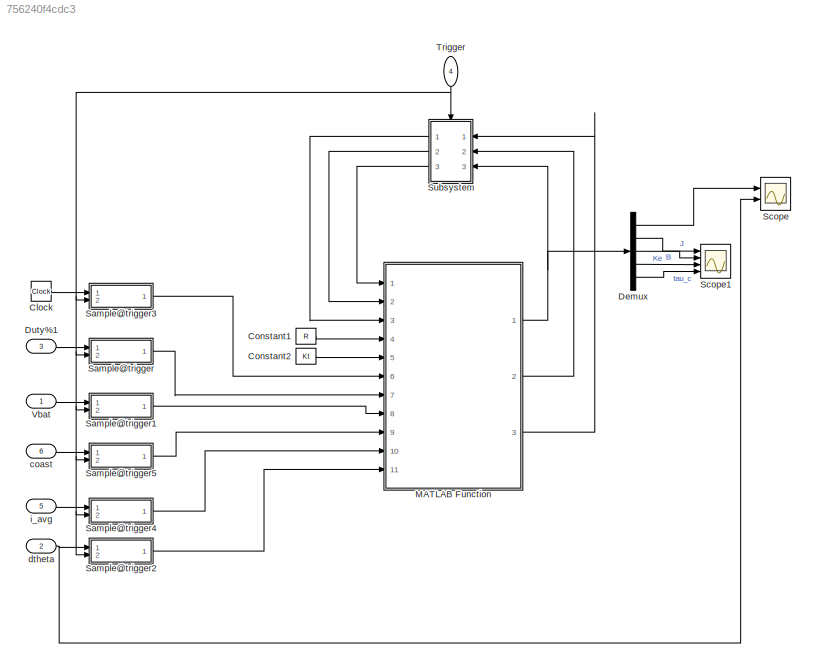
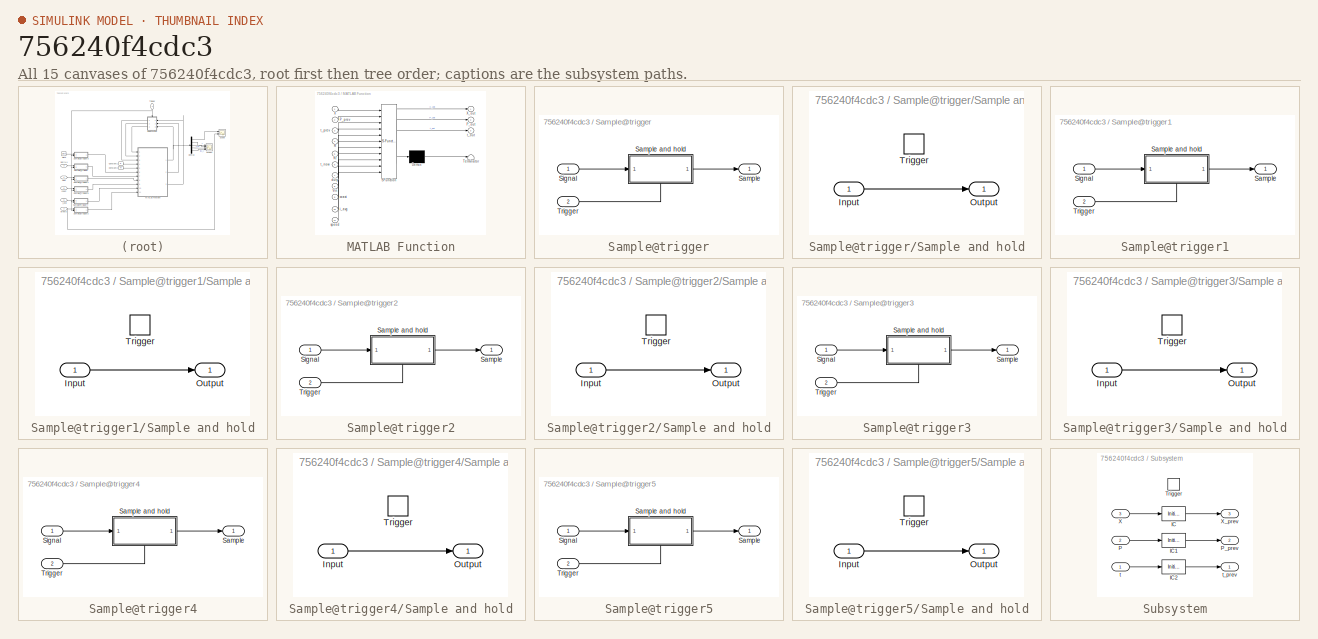
[diagram: thumbnail index - all 15 canvases of the model, root first then tree order]
MODEL slx_756240f4cdc3
KIND model
CONFIG AbsTol = auto
CONFIG EnableMultiTasking = off
CONFIG FixedStep = auto
CONFIG InitFcn = Parameters_Model\nParameters_Simulation\nParameters_Estimators
CONFIG MaxStep = auto
CONFIG MinStep = auto
CONFIG PreLoadFcn = modelDir = fileparts(get_param(bdroot, 'FileName'));\naddpath(fullfile(modelDir,'../../Parameters'));\naddpath(fullfile(modelDir,'../../Estimation/MechanicalParameters'));\n\nParameters_Model\nParameters_Simulation\nParameters_Estimators
CONFIG RelTol = 1e-3
CONFIG SampleTimeConstraint = Unconstrained
CONFIG Solver = VariableStepAuto
CONFIG SolverName = VariableStepAuto
CONFIG StartTime = 0.0
CONFIG StopTime = 10.0
BLOCK [Clock] Clock
BLOCK [Constant] Constant1
  Value = R
BLOCK [Constant] Constant2
  Value = Kt
BLOCK [Demux] Demux
  DisplayOption = bar
  Outputs = 5
  Ports = [1, 5]
BLOCK [Inport] Duty%1
  IconDisplay = Port number
  OutDataTypeStr = double
  Port = 3
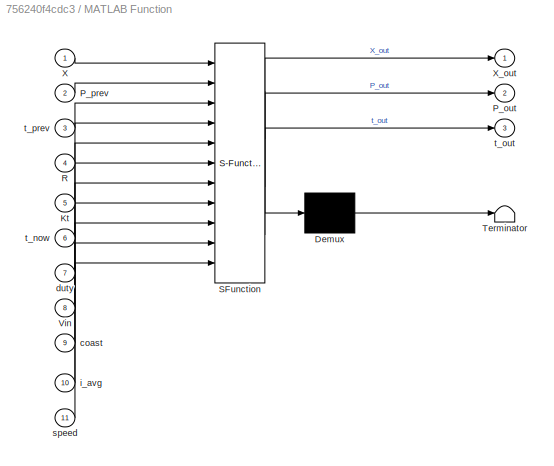
BLOCK [SubSystem] MATLAB Function
  ErrorFcn = Stateflow.Translate.translate
  PermitHierarchicalResolution = ExplicitOnly
  Ports = [11, 3]
  RequestExecContextInheritance = off
  SFBlockType = MATLAB Function
  TreatAsAtomicUnit = on
BLOCK [Demux] MATLAB Function/ Demux 
  Outputs = 1
  Ports = [1, 1]
BLOCK [S-Function] MATLAB Function/ SFunction 
  EnableBusSupport = on
  FunctionName = sf_sfun
  PortCounts = [11 4]
  Ports = [11, 4]
  SFcnIsStateOwnerBlock = off
  SFunctionDeploymentMode = off
  Tag = Stateflow S-Function 2
BLOCK [Terminator] MATLAB Function/ Terminator 
BLOCK [Inport] MATLAB Function/Kt
  IconDisplay = Port number
  Port = 5
BLOCK [Outport] MATLAB Function/P_out
  IconDisplay = Port number
  Port = 2
  VectorParamsAs1DForOutWhenUnconnected = off
BLOCK [Inport] MATLAB Function/P_prev
  IconDisplay = Port number
  Port = 2
BLOCK [Inport] MATLAB Function/R
  IconDisplay = Port number
  Port = 4
BLOCK [Inport] MATLAB Function/Vin
  IconDisplay = Port number
  Port = 8
BLOCK [Inport] MATLAB Function/X
  IconDisplay = Port number
BLOCK [Outport] MATLAB Function/X_out
  IconDisplay = Port number
  VectorParamsAs1DForOutWhenUnconnected = off
BLOCK [Inport] MATLAB Function/coast
  IconDisplay = Port number
  Port = 9
BLOCK [Inport] MATLAB Function/duty
  IconDisplay = Port number
  Port = 7
BLOCK [Inport] MATLAB Function/i_avg
  IconDisplay = Port number
  Port = 10
BLOCK [Inport] MATLAB Function/speed
  IconDisplay = Port number
  Port = 11
BLOCK [Inport] MATLAB Function/t_now
  IconDisplay = Port number
  Port = 6
BLOCK [Outport] MATLAB Function/t_out
  IconDisplay = Port number
  Port = 3
  VectorParamsAs1DForOutWhenUnconnected = off
BLOCK [Inport] MATLAB Function/t_prev
  IconDisplay = Port number
  Port = 3
BLOCK [SubSystem] Sample@trigger
  Ports = [2, 1]
  RequestExecContextInheritance = off
BLOCK [Outport] Sample@trigger/Sample
  IconDisplay = Port number
  VectorParamsAs1DForOutWhenUnconnected = off
BLOCK [SubSystem] Sample@trigger/Sample and hold
  Ports = [1, 1, 0, 1]
  RequestExecContextInheritance = off
BLOCK [Inport] Sample@trigger/Sample and hold/Input
  IconDisplay = Port number
BLOCK [Outport] Sample@trigger/Sample and hold/Output
  IconDisplay = Port number
  VectorParamsAs1DForOutWhenUnconnected = off
BLOCK [TriggerPort] Sample@trigger/Sample and hold/Trigger
  PortDimensions = 1
  Ports = []
  StatesWhenEnabling = held
  VariantControl = Variant
BLOCK [Inport] Sample@trigger/Signal
  IconDisplay = Port number
BLOCK [Inport] Sample@trigger/Trigger
  IconDisplay = Port number
  Port = 2
BLOCK [SubSystem] Sample@trigger1
  Ports = [2, 1]
  RequestExecContextInheritance = off
BLOCK [Outport] Sample@trigger1/Sample
  IconDisplay = Port number
  VectorParamsAs1DForOutWhenUnconnected = off
BLOCK [SubSystem] Sample@trigger1/Sample and hold
  Ports = [1, 1, 0, 1]
  RequestExecContextInheritance = off
BLOCK [Inport] Sample@trigger1/Sample and hold/Input
  IconDisplay = Port number
BLOCK [Outport] Sample@trigger1/Sample and hold/Output
  IconDisplay = Port number
  VectorParamsAs1DForOutWhenUnconnected = off
BLOCK [TriggerPort] Sample@trigger1/Sample and hold/Trigger
  PortDimensions = 1
  Ports = []
  StatesWhenEnabling = held
  VariantControl = Variant
BLOCK [Inport] Sample@trigger1/Signal
  IconDisplay = Port number
BLOCK [Inport] Sample@trigger1/Trigger
  IconDisplay = Port number
  Port = 2
BLOCK [SubSystem] Sample@trigger2
  Ports = [2, 1]
  RequestExecContextInheritance = off
BLOCK [Outport] Sample@trigger2/Sample
  IconDisplay = Port number
  VectorParamsAs1DForOutWhenUnconnected = off
BLOCK [SubSystem] Sample@trigger2/Sample and hold
  Ports = [1, 1, 0, 1]
  RequestExecContextInheritance = off
BLOCK [Inport] Sample@trigger2/Sample and hold/Input
  IconDisplay = Port number
BLOCK [Outport] Sample@trigger2/Sample and hold/Output
  IconDisplay = Port number
  VectorParamsAs1DForOutWhenUnconnected = off
BLOCK [TriggerPort] Sample@trigger2/Sample and hold/Trigger
  PortDimensions = 1
  Ports = []
  StatesWhenEnabling = held
  VariantControl = Variant
BLOCK [Inport] Sample@trigger2/Signal
  IconDisplay = Port number
BLOCK [Inport] Sample@trigger2/Trigger
  IconDisplay = Port number
  Port = 2
BLOCK [SubSystem] Sample@trigger3
  Ports = [2, 1]
  RequestExecContextInheritance = off
BLOCK [Outport] Sample@trigger3/Sample
  IconDisplay = Port number
  VectorParamsAs1DForOutWhenUnconnected = off
BLOCK [SubSystem] Sample@trigger3/Sample and hold
  Ports = [1, 1, 0, 1]
  RequestExecContextInheritance = off
BLOCK [Inport] Sample@trigger3/Sample and hold/Input
  IconDisplay = Port number
BLOCK [Outport] Sample@trigger3/Sample and hold/Output
  IconDisplay = Port number
  VectorParamsAs1DForOutWhenUnconnected = off
BLOCK [TriggerPort] Sample@trigger3/Sample and hold/Trigger
  PortDimensions = 1
  Ports = []
  StatesWhenEnabling = held
  VariantControl = Variant
BLOCK [Inport] Sample@trigger3/Signal
  IconDisplay = Port number
BLOCK [Inport] Sample@trigger3/Trigger
  IconDisplay = Port number
  Port = 2
BLOCK [SubSystem] Sample@trigger4
  Ports = [2, 1]
  RequestExecContextInheritance = off
BLOCK [Outport] Sample@trigger4/Sample
  IconDisplay = Port number
  VectorParamsAs1DForOutWhenUnconnected = off
BLOCK [SubSystem] Sample@trigger4/Sample and hold
  Ports = [1, 1, 0, 1]
  RequestExecContextInheritance = off
BLOCK [Inport] Sample@trigger4/Sample and hold/Input
  IconDisplay = Port number
BLOCK [Outport] Sample@trigger4/Sample and hold/Output
  IconDisplay = Port number
  VectorParamsAs1DForOutWhenUnconnected = off
BLOCK [TriggerPort] Sample@trigger4/Sample and hold/Trigger
  PortDimensions = 1
  Ports = []
  StatesWhenEnabling = held
  VariantControl = Variant
BLOCK [Inport] Sample@trigger4/Signal
  IconDisplay = Port number
BLOCK [Inport] Sample@trigger4/Trigger
  IconDisplay = Port number
  Port = 2
BLOCK [SubSystem] Sample@trigger5
  Ports = [2, 1]
  RequestExecContextInheritance = off
BLOCK [Outport] Sample@trigger5/Sample
  IconDisplay = Port number
  VectorParamsAs1DForOutWhenUnconnected = off
BLOCK [SubSystem] Sample@trigger5/Sample and hold
  Ports = [1, 1, 0, 1]
  RequestExecContextInheritance = off
BLOCK [Inport] Sample@trigger5/Sample and hold/Input
  IconDisplay = Port number
BLOCK [Outport] Sample@trigger5/Sample and hold/Output
  IconDisplay = Port number
  VectorParamsAs1DForOutWhenUnconnected = off
BLOCK [TriggerPort] Sample@trigger5/Sample and hold/Trigger
  PortDimensions = 1
  Ports = []
  StatesWhenEnabling = held
  VariantControl = Variant
BLOCK [Inport] Sample@trigger5/Signal
  IconDisplay = Port number
BLOCK [Inport] Sample@trigger5/Trigger
  IconDisplay = Port number
  Port = 2
BLOCK [Scope] Scope
  Floating = off
  NumInputPorts = 2
  Ports = [2]
  ScopeSpecificationString = Simulink.scopes.TimeScopeBlockCfg('CurrentConfiguration', extmgr.ConfigurationSet(extmgr.Configuration('Core','General UI',true),extmgr.Configuration('Core','Source UI',true),extmgr.Configuration('Sources','WiredSimulink',true),extmgr.Configuration('Visuals','Time Domain',true,'SerializedDisplays',{struct('MinYLimReal','-5.24586','MaxYLimReal','47.21271','YLabelReal','','MinYLimMag','0.00000','Max...<+1488ch>
BLOCK [Scope] Scope1
  Floating = off
  NumInputPorts = 4
  Ports = [4]
  ScopeSpecificationString = Simulink.scopes.TimeScopeBlockCfg('CurrentConfiguration', extmgr.ConfigurationSet(extmgr.Configuration('Core','General UI',true),extmgr.Configuration('Core','Source UI',true),extmgr.Configuration('Sources','WiredSimulink',true,'DataLoggingVariableName','ScopeData1'),extmgr.Configuration('Visuals','Time Domain',true,'SerializedDisplays',{struct('MinYLimReal','-0.0033','MaxYLimReal','0.01148','YLabe...<+3953ch>
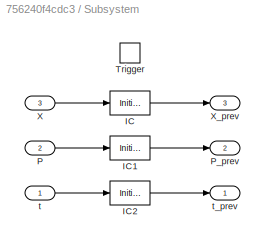
BLOCK [SubSystem] Subsystem
  Ports = [3, 3, 0, 1]
  RequestExecContextInheritance = off
BLOCK [InitialCondition] Subsystem/IC
  Value = JKeBTauCekf_X_init
BLOCK [InitialCondition] Subsystem/IC1
  Value = JKeBTauCekf_P_init
BLOCK [InitialCondition] Subsystem/IC2
  Value = 0
BLOCK [Inport] Subsystem/P
  IconDisplay = Port number
  LatchByDelayingOutsideSignal = on
  Port = 2
BLOCK [Outport] Subsystem/P_prev
  IconDisplay = Port number
  Port = 2
  VectorParamsAs1DForOutWhenUnconnected = off
BLOCK [TriggerPort] Subsystem/Trigger
  PortDimensions = 1
  Ports = []
  StatesWhenEnabling = held
  VariantControl = Variant
BLOCK [Inport] Subsystem/X
  IconDisplay = Port number
  LatchByDelayingOutsideSignal = on
  Port = 3
BLOCK [Outport] Subsystem/X_prev
  IconDisplay = Port number
  Port = 3
  VectorParamsAs1DForOutWhenUnconnected = off
BLOCK [Inport] Subsystem/t
  IconDisplay = Port number
  LatchByDelayingOutsideSignal = on
BLOCK [Outport] Subsystem/t_prev
  IconDisplay = Port number
  VectorParamsAs1DForOutWhenUnconnected = off
BLOCK [Inport] Trigger
  IconDisplay = Port number
  OutDataTypeStr = boolean
  Port = 4
BLOCK [Inport] Vbat
  IconDisplay = Port number
  OutDataTypeStr = double
BLOCK [Inport] coast
  IconDisplay = Port number
  OutDataTypeStr = boolean
  Port = 6
BLOCK [Inport] dtheta
  IconDisplay = Port number
  OutDataTypeStr = double
  Port = 2
BLOCK [Inport] i_avg
  IconDisplay = Port number
  OutDataTypeStr = double
  Port = 5
LINE Clock:1 -> Sample@trigger3:1
LINE Constant1:1 -> MATLAB Function:4
LINE Constant2:1 -> MATLAB Function:5
LINE Demux:1 -> Scope:1
LINE Demux:2 -> Scope1:1
LINE Demux:3 -> Scope1:2
LINE Demux:4 -> Scope1:3
LINE Demux:5 -> Scope1:4
LINE Duty%1:1 -> Sample@trigger:1
NET MATLAB Function:1 -> Demux:1, Subsystem:3
LINE MATLAB Function:2 -> Subsystem:2
LINE MATLAB Function:3 -> Subsystem:1
LINE Sample@trigger/Sample and hold/Input:1 -> Sample@trigger/Sample and hold/Output:1
LINE Sample@trigger/Sample and hold:1 -> Sample@trigger/Sample:1
LINE Sample@trigger/Signal:1 -> Sample@trigger/Sample and hold:1
LINE Sample@trigger/Trigger:1 -> Sample@trigger/Sample and hold:trigger
LINE Sample@trigger1/Sample and hold/Input:1 -> Sample@trigger1/Sample and hold/Output:1
LINE Sample@trigger1/Sample and hold:1 -> Sample@trigger1/Sample:1
LINE Sample@trigger1/Signal:1 -> Sample@trigger1/Sample and hold:1
LINE Sample@trigger1/Trigger:1 -> Sample@trigger1/Sample and hold:trigger
LINE Sample@trigger1:1 -> MATLAB Function:8
LINE Sample@trigger2/Sample and hold/Input:1 -> Sample@trigger2/Sample and hold/Output:1
LINE Sample@trigger2/Sample and hold:1 -> Sample@trigger2/Sample:1
LINE Sample@trigger2/Signal:1 -> Sample@trigger2/Sample and hold:1
LINE Sample@trigger2/Trigger:1 -> Sample@trigger2/Sample and hold:trigger
LINE Sample@trigger2:1 -> MATLAB Function:11
LINE Sample@trigger3/Sample and hold/Input:1 -> Sample@trigger3/Sample and hold/Output:1
LINE Sample@trigger3/Sample and hold:1 -> Sample@trigger3/Sample:1
LINE Sample@trigger3/Signal:1 -> Sample@trigger3/Sample and hold:1
LINE Sample@trigger3/Trigger:1 -> Sample@trigger3/Sample and hold:trigger
LINE Sample@trigger3:1 -> MATLAB Function:6
LINE Sample@trigger4/Sample and hold/Input:1 -> Sample@trigger4/Sample and hold/Output:1
LINE Sample@trigger4/Sample and hold:1 -> Sample@trigger4/Sample:1
LINE Sample@trigger4/Signal:1 -> Sample@trigger4/Sample and hold:1
LINE Sample@trigger4/Trigger:1 -> Sample@trigger4/Sample and hold:trigger
LINE Sample@trigger4:1 -> MATLAB Function:10
LINE Sample@trigger5/Sample and hold/Input:1 -> Sample@trigger5/Sample and hold/Output:1
LINE Sample@trigger5/Sample and hold:1 -> Sample@trigger5/Sample:1
LINE Sample@trigger5/Signal:1 -> Sample@trigger5/Sample and hold:1
LINE Sample@trigger5/Trigger:1 -> Sample@trigger5/Sample and hold:trigger
LINE Sample@trigger5:1 -> MATLAB Function:9
LINE Sample@trigger:1 -> MATLAB Function:7
LINE Subsystem/IC1:1 -> Subsystem/P_prev:1
LINE Subsystem/IC2:1 -> Subsystem/t_prev:1
LINE Subsystem/IC:1 -> Subsystem/X_prev:1
LINE Subsystem/P:1 -> Subsystem/IC1:1
LINE Subsystem/X:1 -> Subsystem/IC:1
LINE Subsystem/t:1 -> Subsystem/IC2:1
LINE Subsystem:1 -> MATLAB Function:3
LINE Subsystem:2 -> MATLAB Function:2
LINE Subsystem:3 -> MATLAB Function:1
NET Trigger:1 -> Sample@trigger1:2, Sample@trigger2:2, Sample@trigger3:2, Sample@trigger4:2, Sample@trigger5:2, Sample@trigger:2, Subsystem:trigger
LINE Vbat:1 -> Sample@trigger1:1
LINE coast:1 -> Sample@trigger5:1
NET dtheta:1 -> Sample@trigger2:1, Scope:2
LINE i_avg:1 -> Sample@trigger4:1
note: NET lines group one-source signal fan-out (src -> all destinations, sorted); 1:1 wires keep LINE
CHART MATLAB Function states=1 transitions=1
  STATE_LABEL 'eML_blk_kernel()'
  STATE_LABEL 'SCRIPT:\nfunction [X_out, P_out, t_out] = MechanicalParameterEKF_(X, P_prev, t_prev, ...\n    R, Kt, ... % constants/parameters\n    t_now, duty, Vin, coast, ... % inputs (u)\n    i_avg, speed)  % measurements (z)\n\n    [X_out, P_out, t_out] = MechanicalParameterEKF(X, P_prev, t_prev, ...\n        R, Kt, ... % constants/parameters\n        t_now, duty, Vin, coast, ... % inputs (u)\n        i_avg, speed); ...<+25ch>'
